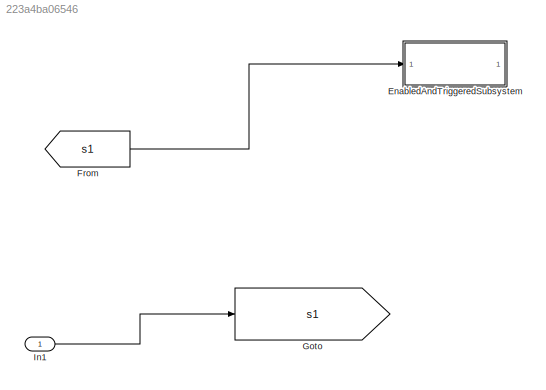
MODEL slx_223a4ba06546
KIND model
CONFIG AbsTol = auto
CONFIG EnableMultiTasking = off
CONFIG FixedStep = auto
CONFIG MaxStep = auto
CONFIG MinStep = auto
CONFIG RelTol = 1e-3
CONFIG SampleTimeConstraint = Unconstrained
CONFIG Solver = VariableStepAuto
CONFIG SolverName = VariableStepAuto
CONFIG StartTime = 0.0
CONFIG StopTime = 10.0
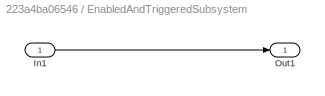
BLOCK [SubSystem] EnabledAndTriggeredSubsystem
  Ports = [1, 1]
  RTWSystemCode = Inline
  RequestExecContextInheritance = off
  TreatAsAtomicUnit = on
  Variant = off
BLOCK [Inport] EnabledAndTriggeredSubsystem/In1
  IconDisplay = Port number
BLOCK [Outport] EnabledAndTriggeredSubsystem/Out1
  IconDisplay = Port number
BLOCK [From] From
  AttributesFormatString = %<GotoTag>
  GotoTag = s1
BLOCK [Goto] Goto
  AttributesFormatString = %<GotoTag>
  GotoTag = s1
BLOCK [Inport] In1
  IconDisplay = Port number
LINE EnabledAndTriggeredSubsystem/In1:1 -> EnabledAndTriggeredSubsystem/Out1:1
LINE From:1 -> EnabledAndTriggeredSubsystem:1
LINE In1:1 -> Goto:1
